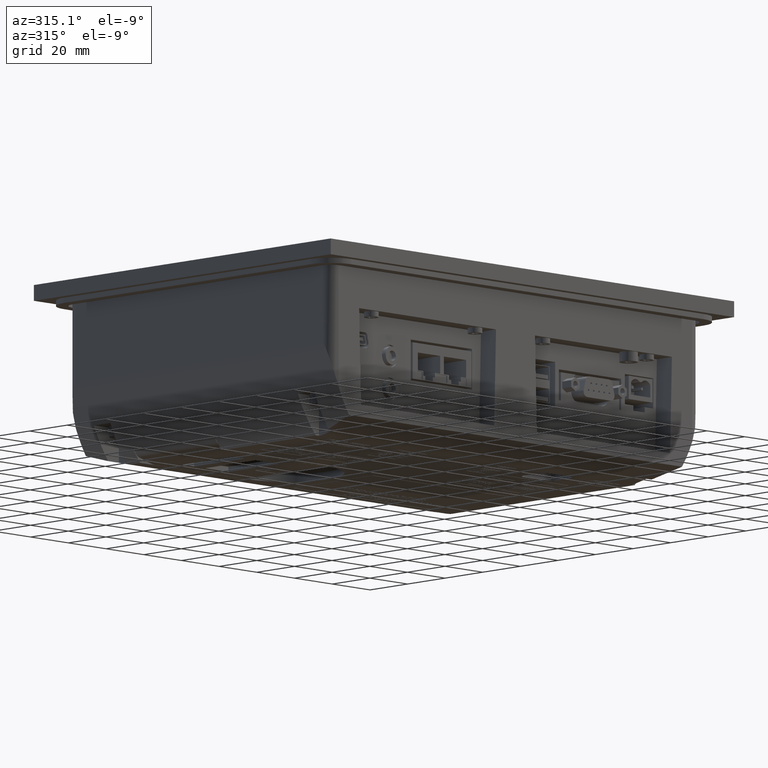
[diagram: clean part render]
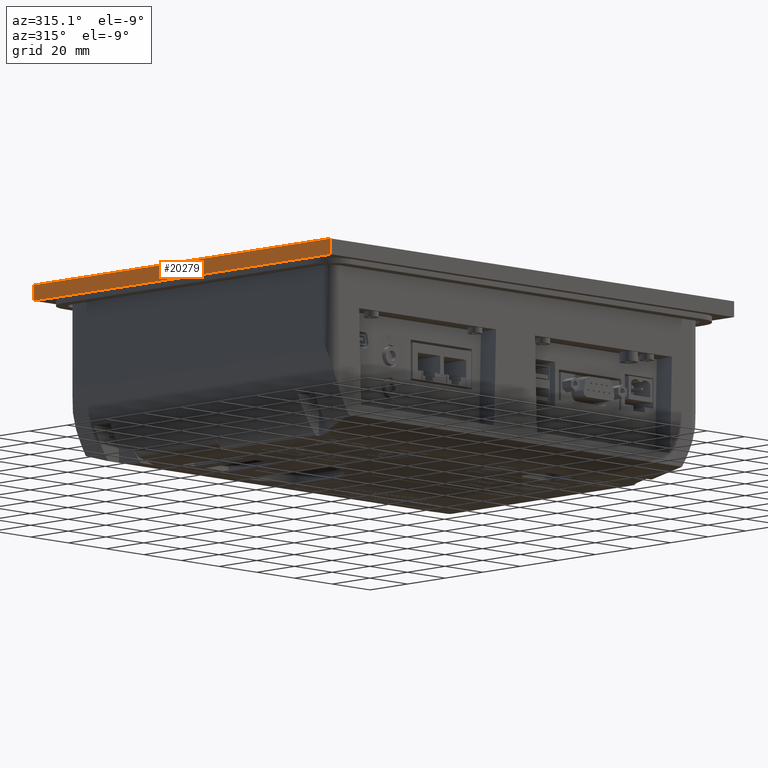
[diagram: same view with one face highlighted and labeled with its STEP entity id]
A machine part, auxiliary view. The second image highlights one B-rep face of the part: STEP entity #20279.
In plain terms, the highlighted planar face has unit normal (1, 0, 0).
Its self-contained STEP definition (entity closure, byte-faithful):
#2350=LINE('',#67791,#7735);
#2358=LINE('',#67808,#7743);
#2359=LINE('',#67810,#7744);
#2360=LINE('',#67812,#7745);
#7735=VECTOR('',#55948,1.);
#7743=VECTOR('',#55958,1.);
#7744=VECTOR('',#55959,1.);
#7745=VECTOR('',#55960,1.);
#15369=PLANE('',#51109);
#17748=FACE_OUTER_BOUND('',#23832,.T.);
#20279=ADVANCED_FACE('',(#17748),#15369,.F.);
#23832=EDGE_LOOP('',(#29028,#29029,#29030,#29031));
#29028=ORIENTED_EDGE('',*,*,#44770,.T.);
#29029=ORIENTED_EDGE('',*,*,#44778,.F.);
#29030=ORIENTED_EDGE('',*,*,#44779,.F.);
#29031=ORIENTED_EDGE('',*,*,#44780,.T.);
#39998=VERTEX_POINT('',#67792);
#39999=VERTEX_POINT('',#67793);
#40006=VERTEX_POINT('',#67809);
#40007=VERTEX_POINT('',#67811);
#44770=EDGE_CURVE('',#39998,#39999,#2350,.T.);
#44778=EDGE_CURVE('',#40006,#39999,#2358,.T.);
#44779=EDGE_CURVE('',#40007,#40006,#2359,.T.);
#44780=EDGE_CURVE('',#40007,#39998,#2360,.T.);
#51109=AXIS2_PLACEMENT_3D('',#67813,#55961,#55962);
#55948=DIRECTION('',(0.,1.,0.));
#55958=DIRECTION('',(0.,0.,1.));
#55959=DIRECTION('',(0.,1.,0.));
#55960=DIRECTION('',(0.,0.,1.));
#55961=DIRECTION('',(1.,0.,0.));
#55962=DIRECTION('',(0.,0.,-1.));
#67791=CARTESIAN_POINT('',(-107.,-79.,0.));
#67792=CARTESIAN_POINT('',(-107.,-79.,0.));
#67793=CARTESIAN_POINT('',(-107.,79.,0.));
#67808=CARTESIAN_POINT('',(-107.,79.,-6.));
#67809=CARTESIAN_POINT('',(-107.,79.,-6.));
#67810=CARTESIAN_POINT('',(-107.,-79.,-6.));
#67811=CARTESIAN_POINT('',(-107.,-79.,-6.));
#67812=CARTESIAN_POINT('',(-107.,-79.,-6.));
#67813=CARTESIAN_POINT('',(-107.,-79.,-6.));